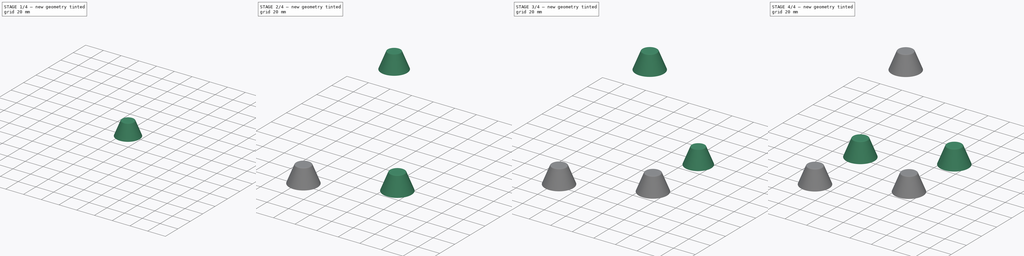
[diagram: build sequence overview — one tinted view per stage of 4, left to right]
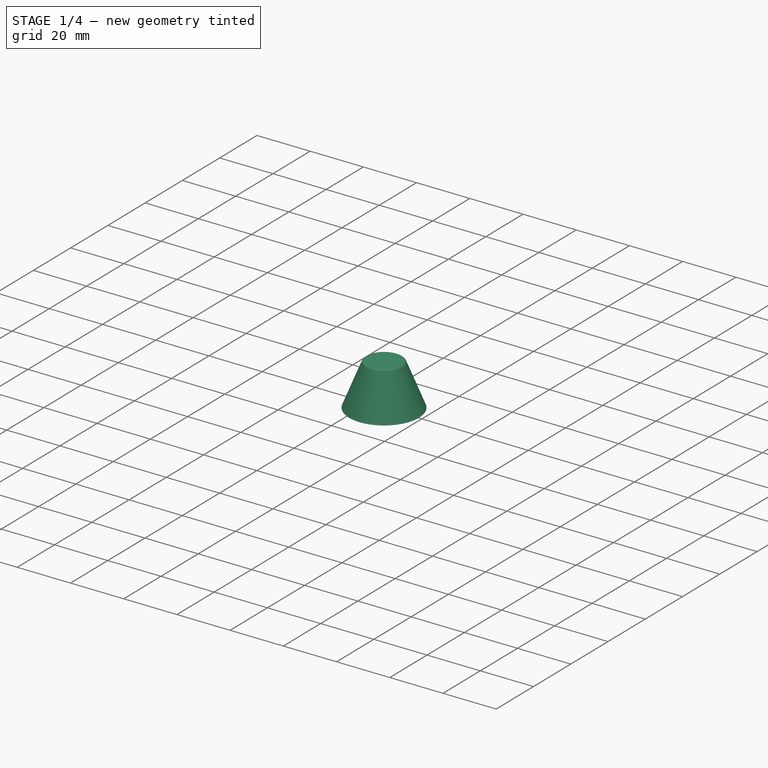
[diagram: stage 1 of 4 — iso view after this stage's code; geometry added in this stage tinted green]
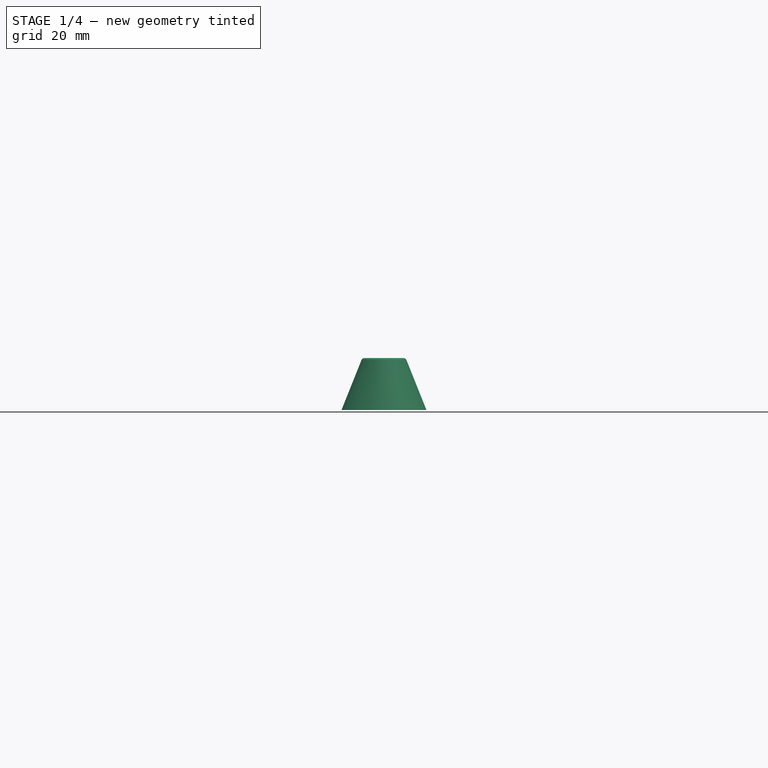
[diagram: stage 1 of 4 — front view after this stage's code; geometry added in this stage tinted green]
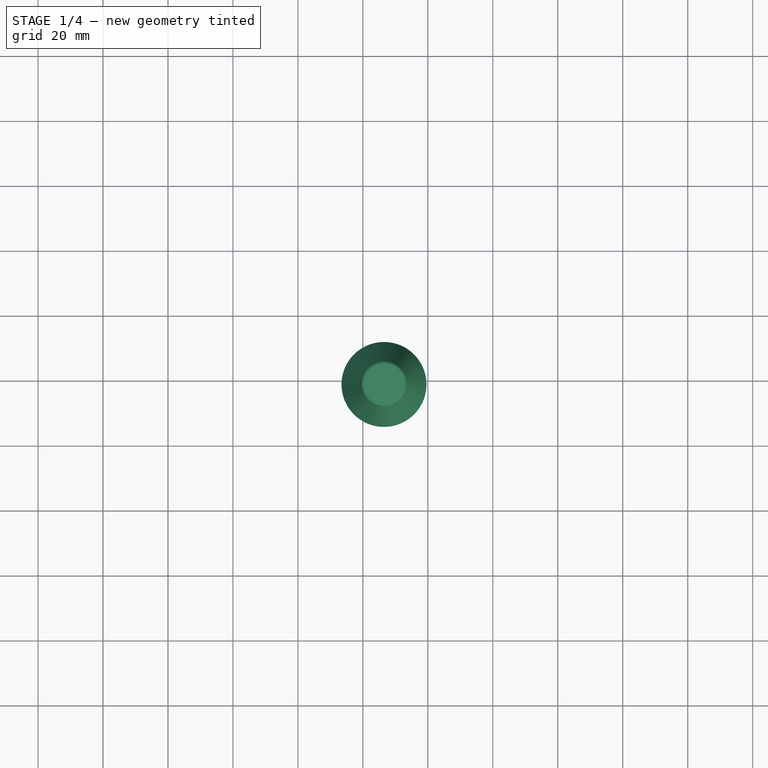
[diagram: stage 1 of 4 — top view after this stage's code; geometry added in this stage tinted green]
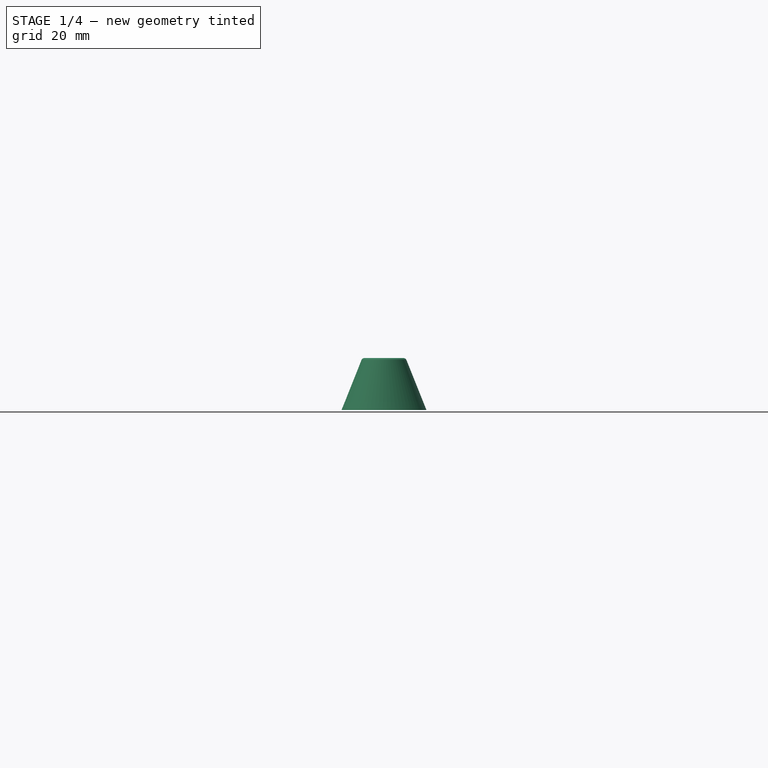
[diagram: stage 1 of 4 — right view after this stage's code; geometry added in this stage tinted green]
FCSTD DOCUMENT  (FreeCAD 0.20R26720 (Git))
Label: nudge_lamp_holder__new4
License: All rights reserved
LicenseURL: http://en.wikipedia.org/wiki/All_rights_reserved
objects: Part::Cone×5, Part::Thickness×5, Sketcher::SketchObject×1, PartDesign::Pad×1, PartDesign::Body×1
note: 14 computed .brp shape members not serialized (recipe doc carries the construction recipe); baked Part::Feature solids carry a one-line shape summary decoded from their .brp

FEATURE [Sketcher::SketchObject] Sketch
  FullyConstrained = true
  MapMode = 5
  sketch-geometry (13):
    g0: LineSegment StartX=-47.5 StartY=80 StartZ=0 EndX=47.5 EndY=80 EndZ=0
    g1: LineSegment StartX=47.5 StartY=80 StartZ=0 EndX=47.5 EndY=-80 EndZ=0
    g2: LineSegment StartX=47.5 StartY=-80 StartZ=0 EndX=-47.5 EndY=-80 EndZ=0
    g3: LineSegment StartX=-47.5 StartY=-80 StartZ=0 EndX=-47.5 EndY=80 EndZ=0
    g4: Circle CenterX=-33.5 CenterY=59 CenterZ=0 NormalX=0 NormalY=0 NormalZ=1 AngleXU=0 Radius=11.5
    g5: Circle CenterX=-33.5 CenterY=-1 CenterZ=0 NormalX=0 NormalY=0 NormalZ=1 AngleXU=0 Radius=11.5
    g6: Circle CenterX=-33.5 CenterY=-61 CenterZ=0 NormalX=0 NormalY=0 NormalZ=1 AngleXU=0 Radius=11.5
    g7: Circle CenterX=32.5 CenterY=29 CenterZ=0 NormalX=0 NormalY=0 NormalZ=1 AngleXU=0 Radius=11.5
    g8: Circle CenterX=32.5 CenterY=-31 CenterZ=0 NormalX=0 NormalY=0 NormalZ=1 AngleXU=0 Radius=11.5
    g9: Circle CenterX=42.5 CenterY=75 CenterZ=0 NormalX=0 NormalY=0 NormalZ=1 AngleXU=0 Radius=2.5
    g10: Circle CenterX=-42.5 CenterY=75 CenterZ=0 NormalX=0 NormalY=0 NormalZ=1 AngleXU=0 Radius=2.5
    g11: Circle CenterX=42.5 CenterY=-75 CenterZ=0 NormalX=0 NormalY=0 NormalZ=1 AngleXU=0 Radius=2.5
    g12: Circle CenterX=-42.5 CenterY=-75 CenterZ=0 NormalX=0 NormalY=0 NormalZ=1 AngleXU=0 Radius=2.5
  constraints (37):
    c: Coincident(g0,g1)
    c: Coincident(g1,g2)
    c: Coincident(g2,g3)
    c: Coincident(g3,g0)
    c: Horizontal(g2)
    c: Vertical(g1)
    c: Symmetric(g0,g0,g-2)
    c: Symmetric(g0,g2,g-1)
    c: Distance(g0) = 95
    c: Distance(g1) = 160
    c: Equal(g4,g5)
    c: Equal(g5,g6)
    c: Equal(g6,g8)
    c: Equal(g8,g7)
    c: Diameter(g4) = 23
    c: DistanceX(g4,g7) = 66
    c: DistanceY(g7,g4) = 30
    c: DistanceY(g5,g7) = 30
    c: DistanceY(g8,g5) = 30
    c: DistanceY(g6,g8) = 30
    c: DistanceX(g5,g7) = 66
    c: DistanceX(g5,g8) = 66
    c: DistanceX(g6,g8) = 66
    c: DistanceY(g4,g0) = 21
    c: DistanceX(g0,g4) = 14
    c: Equal(g10,g9)
    c: Equal(g9,g12)
    c: Equal(g12,g11)
    c: Diameter(g10) = 5
    c: DistanceY(g10,g0) = 5
    c: DistanceX(g0,g10) = 5
    c: DistanceX(g2,g12) = 5
    c: DistanceY(g2,g12) = 5
    c: DistanceY(g1,g11) = 5
    c: DistanceX(g11,g1) = 5
    c: DistanceX(g9,g0) = 5
    c: DistanceY(g9,g0) = 5
FEATURE [PartDesign::Pad] Pad
  Direction = (0,0,1)
  Length = 0.3
  Length2 = 100
  Profile = -> Sketch
  ReferenceAxis = -> Sketch [N_Axis]
  Refine = true
  Type = 0
FEATURE [PartDesign::Body] Body
  Group = -> [Pad]
  Origin = -> Origin
  Tip = -> Pad
FEATURE [Part::Cone] Cone
  Angle = 360
  AttacherType = Attacher::AttachEngine3D
  Height = 15
  MapMode = 11
  Placement = pos=(-33.5,-61,0.3) rot=(0,0,1;1.5708rad)
  Radius1 = 12
  Radius2 = 6
  Support = -> [Pad]
  expr: Radius1 = 24 / 2
FEATURE [Part::Thickness] Thickness
  Faces = -> Cone [Face3]
  Intersection = false
  Join = 0
  Mode = 0
  Placement = pos=(0,0,0.3) rot=(0,0,1;0rad)
  SelfIntersection = false
  Value = 1
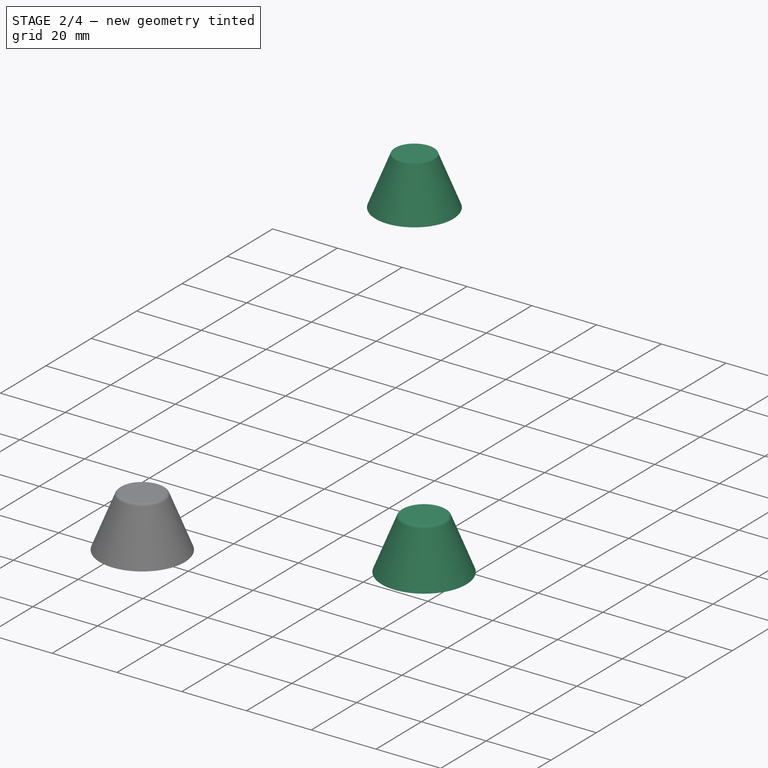
[diagram: stage 2 of 4 — iso view after this stage's code; geometry added in this stage tinted green]
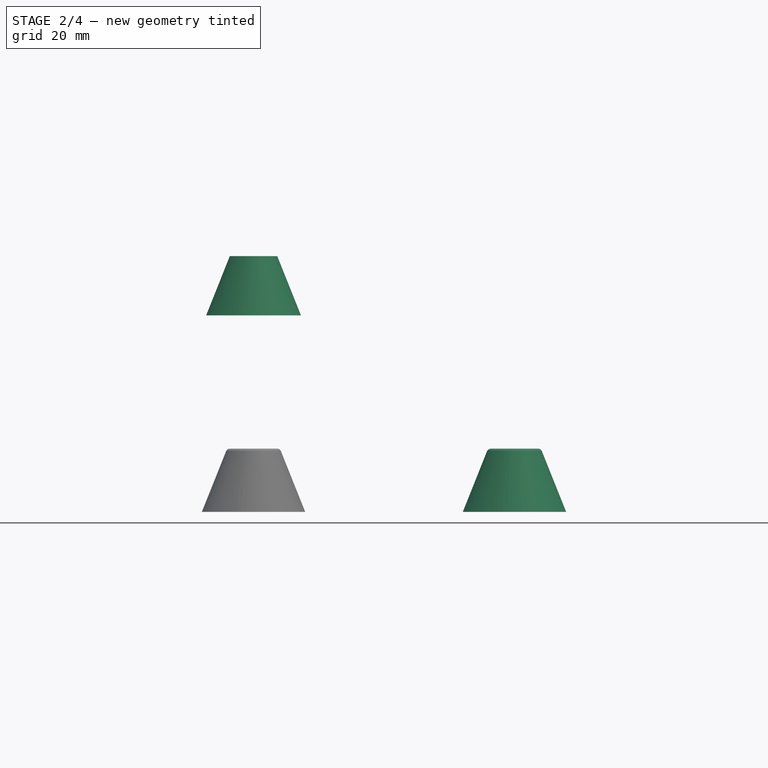
[diagram: stage 2 of 4 — front view after this stage's code; geometry added in this stage tinted green]
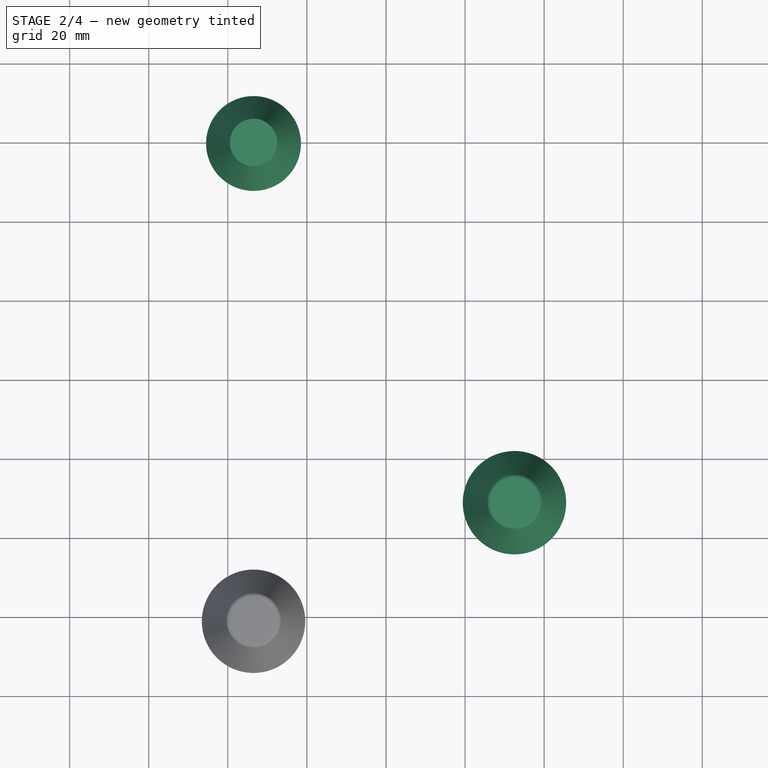
[diagram: stage 2 of 4 — top view after this stage's code; geometry added in this stage tinted green]
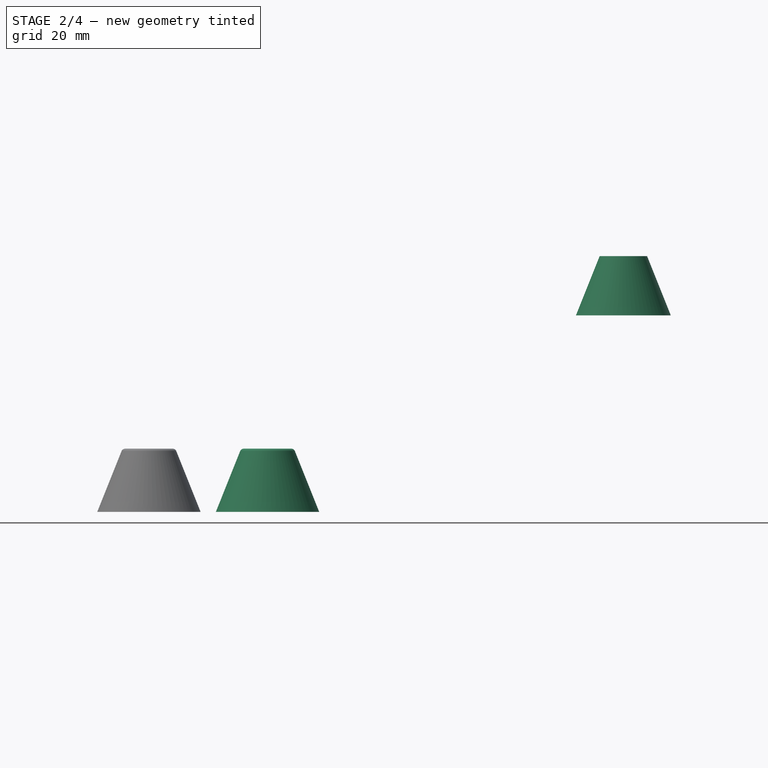
[diagram: stage 2 of 4 — right view after this stage's code; geometry added in this stage tinted green]
FEATURE [Part::Cone] Cone001
  Angle = 360
  AttacherType = Attacher::AttachEngine3D
  Height = 15
  MapMode = 11
  Placement = pos=(32.5,-31,0.3) rot=(0,0,1;1.5708rad)
  Radius1 = 12
  Radius2 = 6
  Support = -> [Pad]
  expr: Radius1 = 24 / 2
FEATURE [Part::Cone] Cone004
  Angle = 360
  AttacherType = Attacher::AttachEngine3D
  AttachmentOffset = pos=(0,0,50) rot=(0,0,1;0rad)
  Height = 15
  MapMode = 11
  Placement = pos=(-33.5,59,50.3) rot=(0,0,1;1.5708rad)
  Radius1 = 12
  Radius2 = 6
  Support = -> [Pad]
  expr: Radius1 = 24 / 2
FEATURE [Part::Thickness] Thickness001
  Faces = -> Cone001 [Face3]
  Intersection = false
  Join = 0
  Mode = 0
  Placement = pos=(0,0,0.3) rot=(0,0,1;0rad)
  SelfIntersection = false
  Value = 1
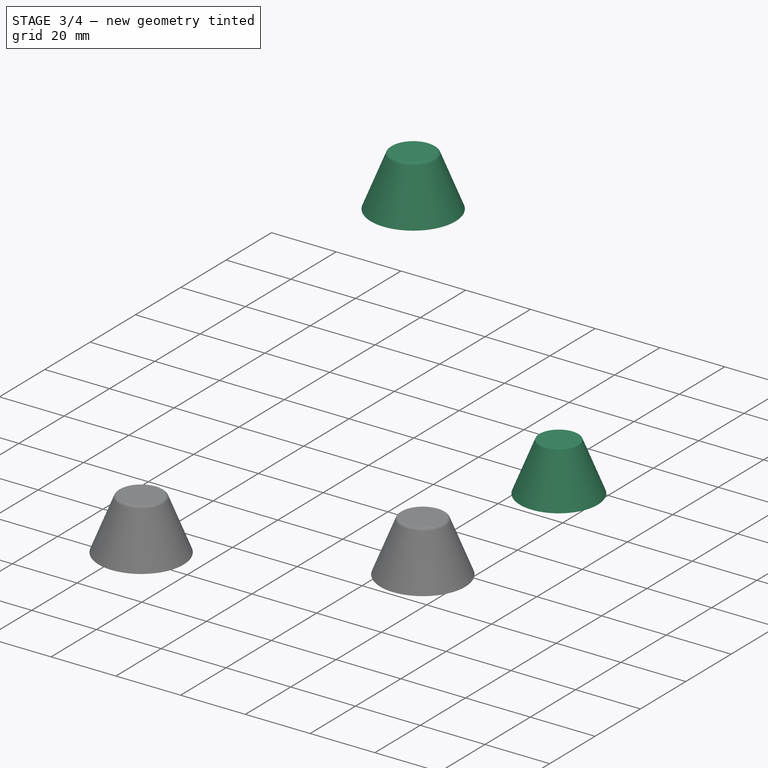
[diagram: stage 3 of 4 — iso view after this stage's code; geometry added in this stage tinted green]
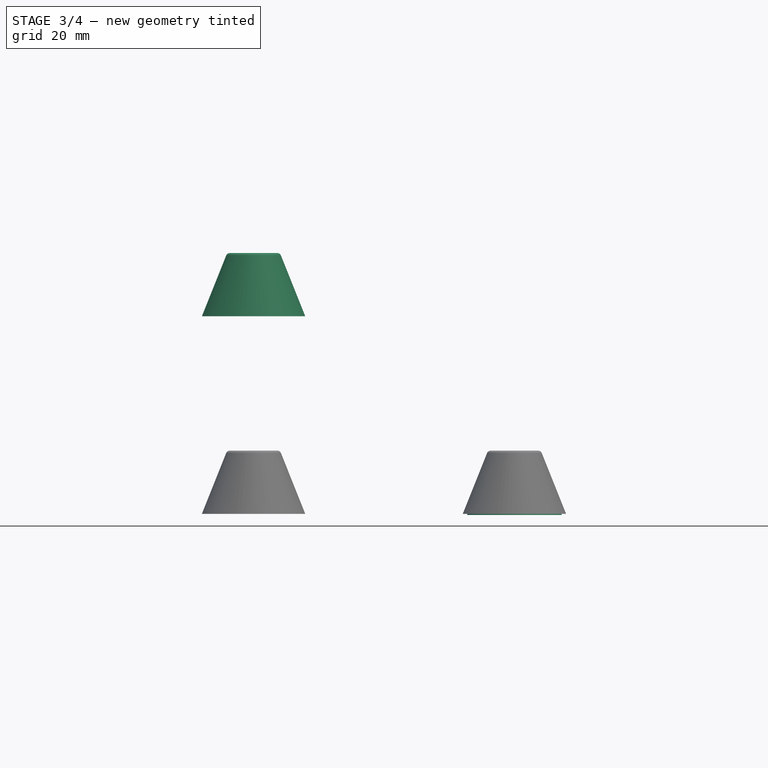
[diagram: stage 3 of 4 — front view after this stage's code; geometry added in this stage tinted green]
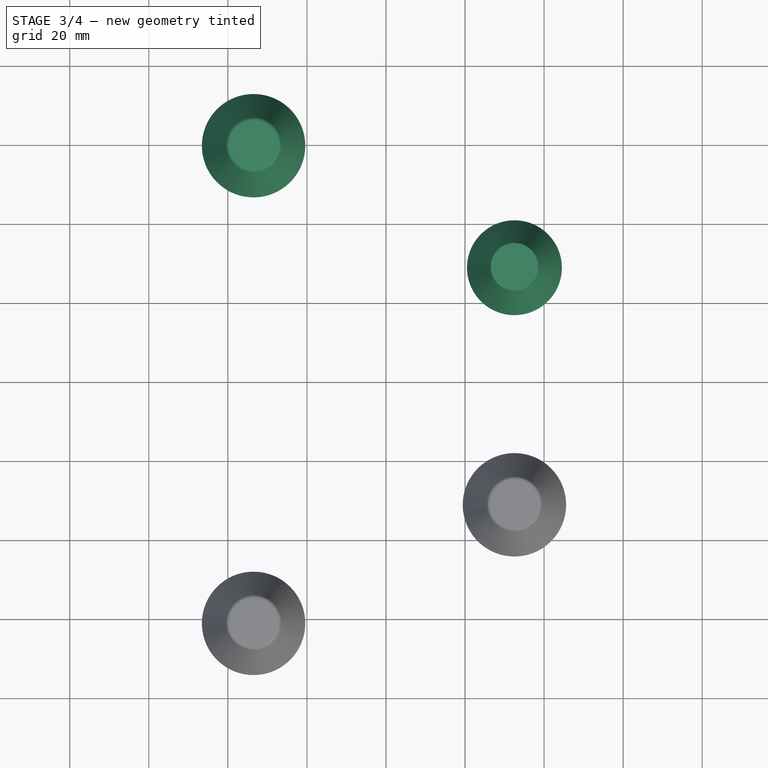
[diagram: stage 3 of 4 — top view after this stage's code; geometry added in this stage tinted green]
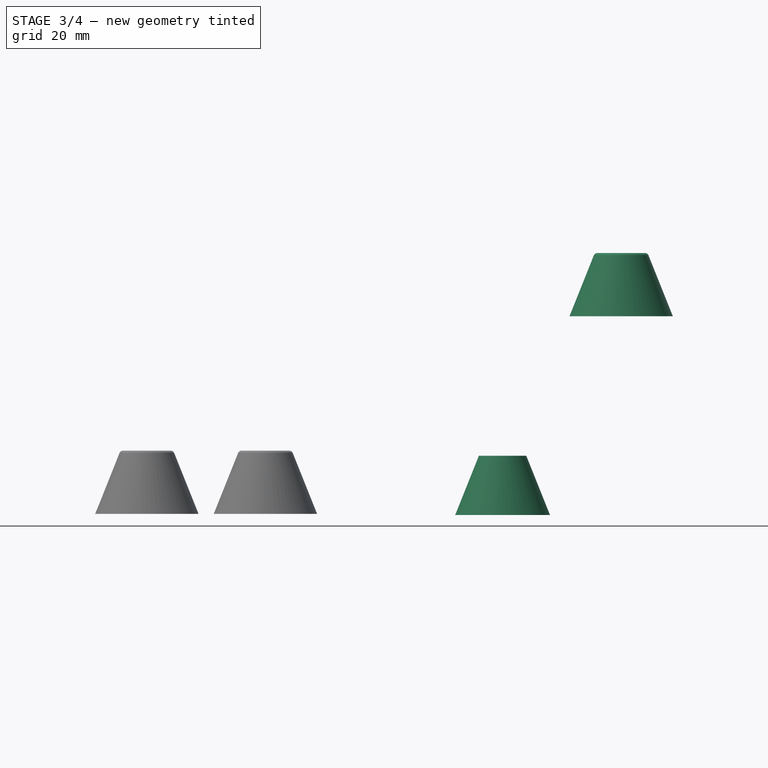
[diagram: stage 3 of 4 — right view after this stage's code; geometry added in this stage tinted green]
FEATURE [Part::Cone] Cone003
  Angle = 360
  AttacherType = Attacher::AttachEngine3D
  Height = 15
  MapMode = 11
  Placement = pos=(32.5,29,0.3) rot=(0,0,1;1.5708rad)
  Radius1 = 12
  Radius2 = 6
  Support = -> [Pad]
  expr: Radius1 = 24 / 2
FEATURE [Part::Thickness] Thickness004
  Faces = -> Cone004 [Face3]
  Intersection = false
  Join = 0
  Mode = 0
  Placement = pos=(0,0,0.3) rot=(0,0,1;0rad)
  SelfIntersection = false
  Value = 1
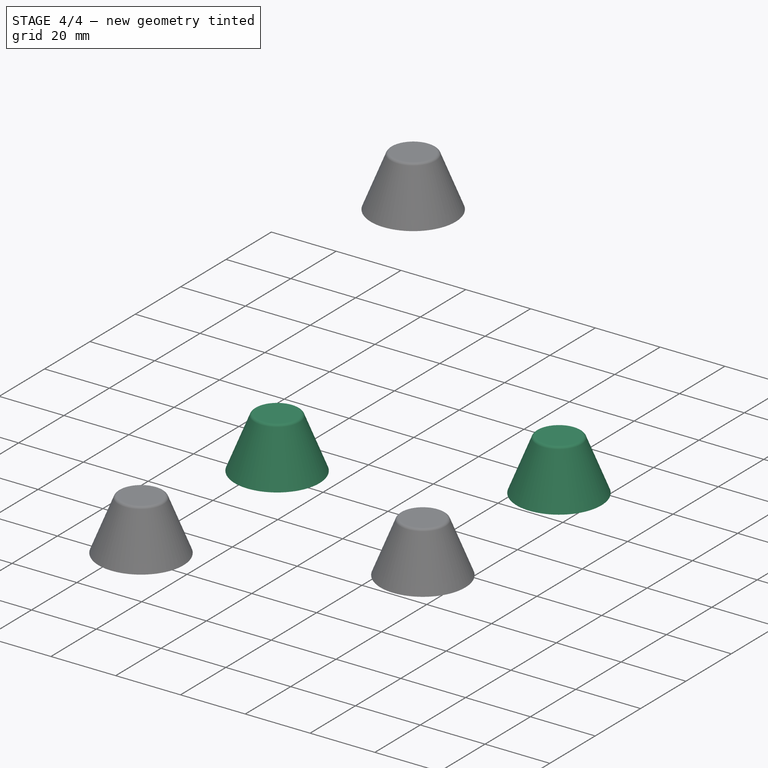
[diagram: stage 4 of 4 — iso view after this stage's code; geometry added in this stage tinted green]
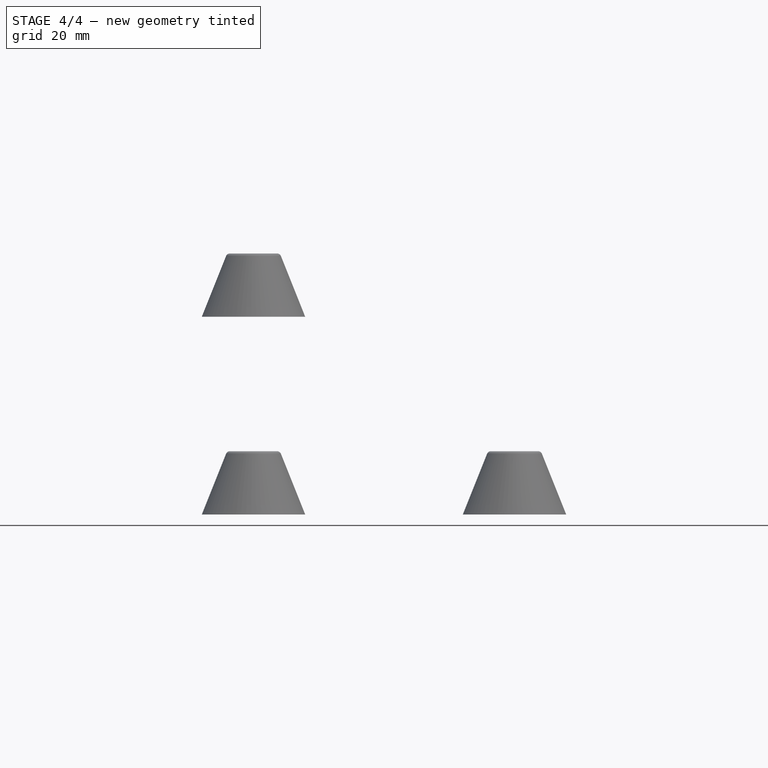
[diagram: stage 4 of 4 — front view after this stage's code; geometry added in this stage tinted green]
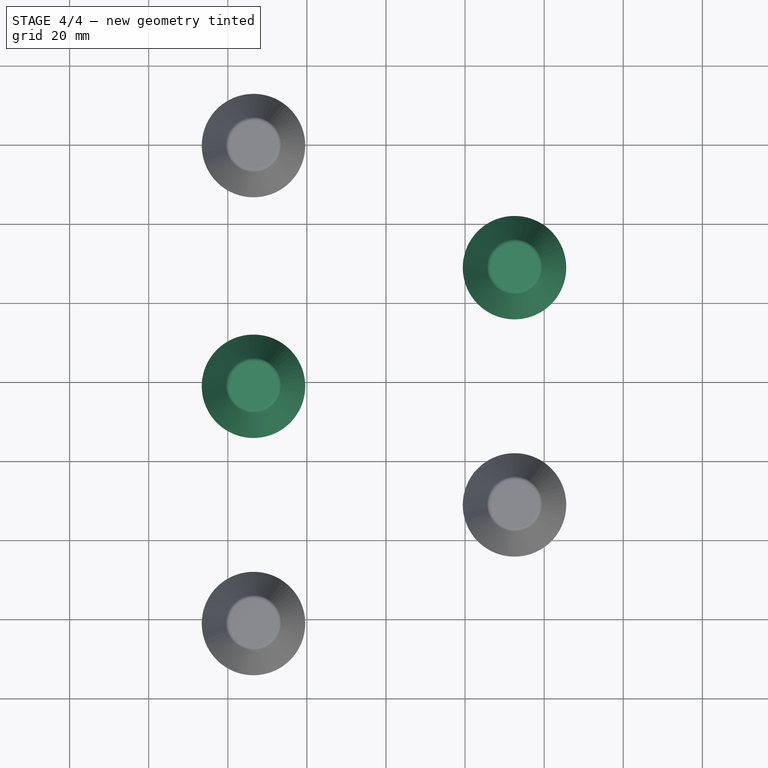
[diagram: stage 4 of 4 — top view after this stage's code; geometry added in this stage tinted green]
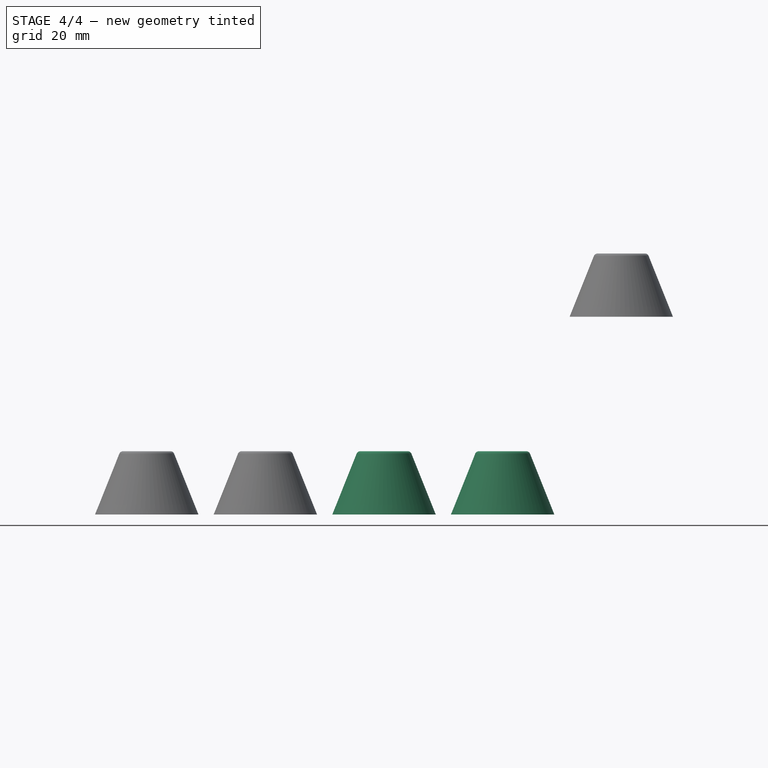
[diagram: stage 4 of 4 — right view after this stage's code; geometry added in this stage tinted green]
FEATURE [Part::Cone] Cone002
  Angle = 360
  AttacherType = Attacher::AttachEngine3D
  Height = 15
  MapMode = 11
  Placement = pos=(-33.5,-1,0.3) rot=(0,0,1;1.5708rad)
  Radius1 = 12
  Radius2 = 6
  Support = -> [Pad]
  expr: Radius1 = 24 / 2
FEATURE [Part::Thickness] Thickness002
  Faces = -> Cone002 [Face3]
  Intersection = false
  Join = 0
  Mode = 0
  Placement = pos=(0,0,0.3) rot=(0,0,1;0rad)
  SelfIntersection = false
  Value = 1
FEATURE [Part::Thickness] Thickness003
  Faces = -> Cone003 [Face3]
  Intersection = false
  Join = 0
  Mode = 0
  Placement = pos=(0,0,0.3) rot=(0,0,1;0rad)
  SelfIntersection = false
  Value = 1
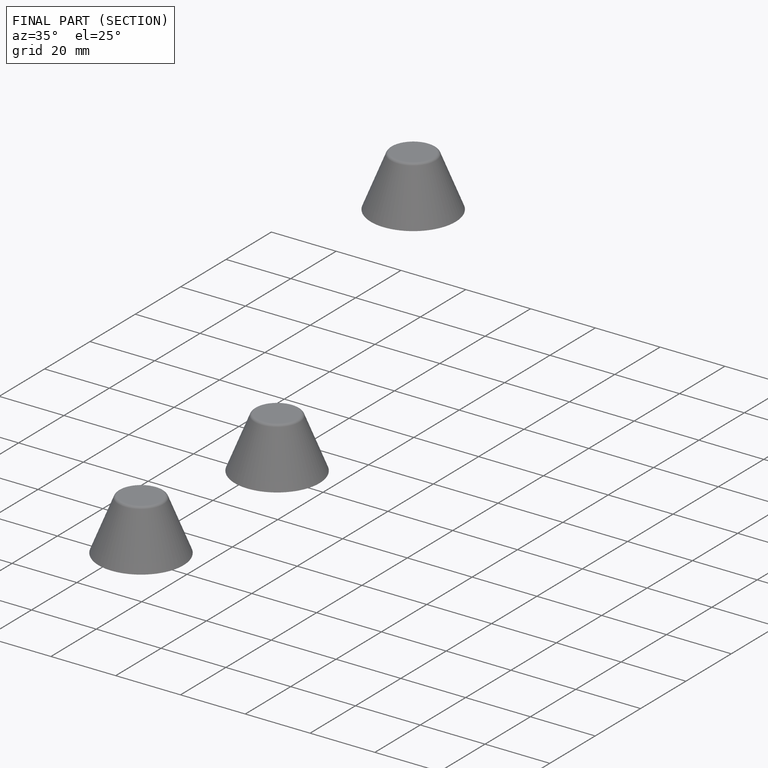
[diagram: finished part — half-section view (interior)]
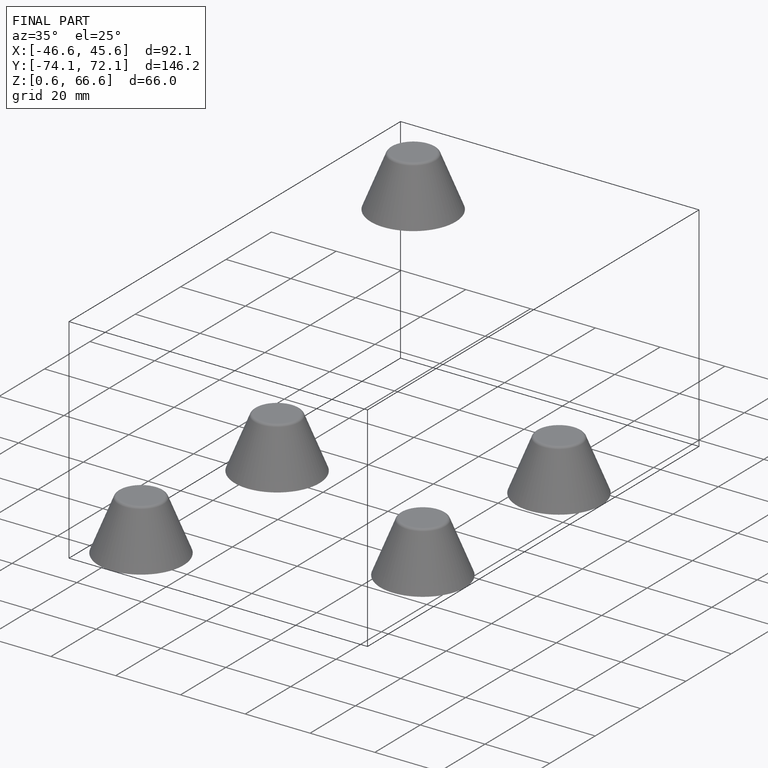
[diagram: finished part — iso view with bounding-box wireframe]
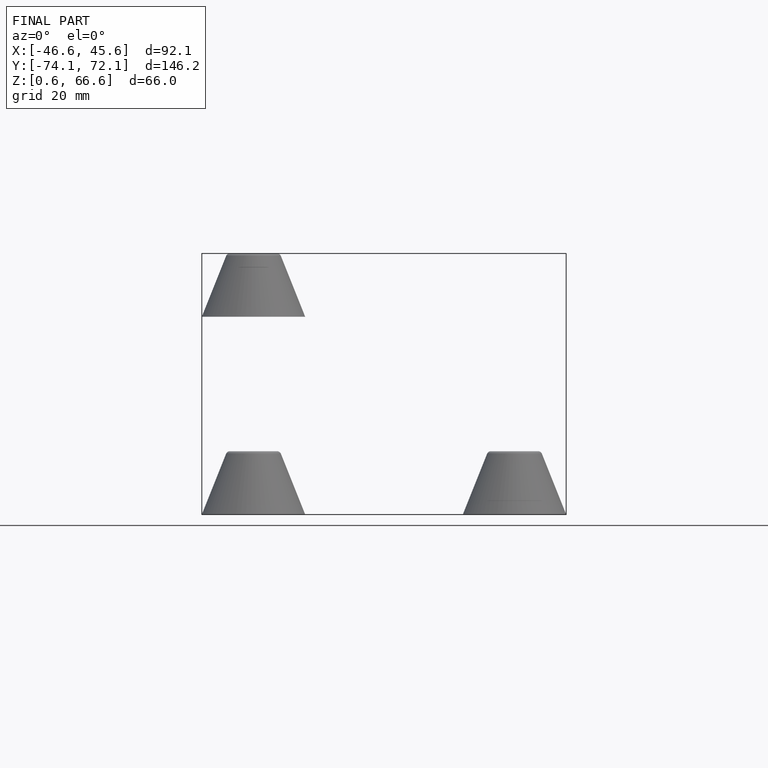
[diagram: finished part — front view with bounding-box wireframe]
